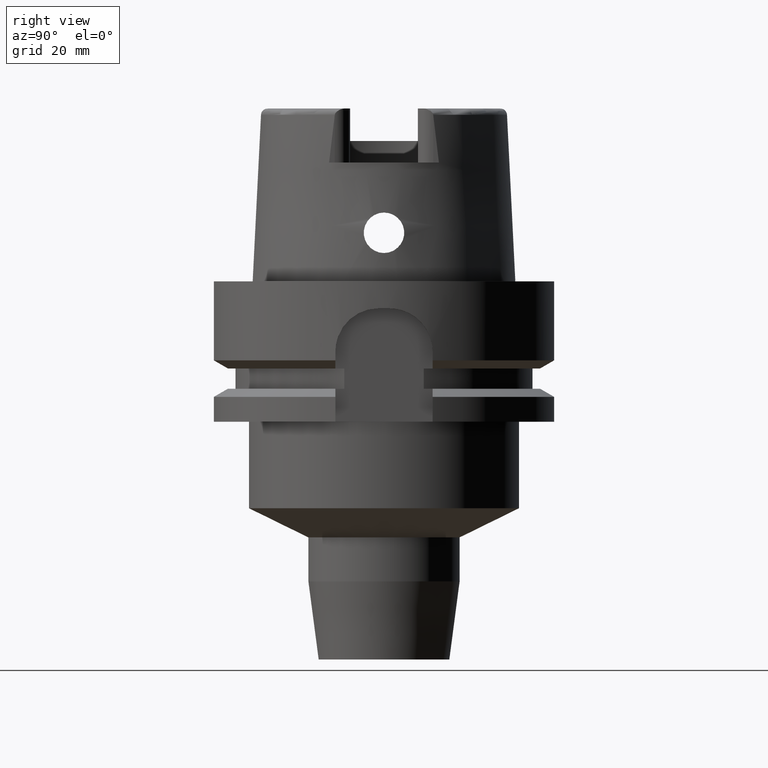
[diagram: clean part render]
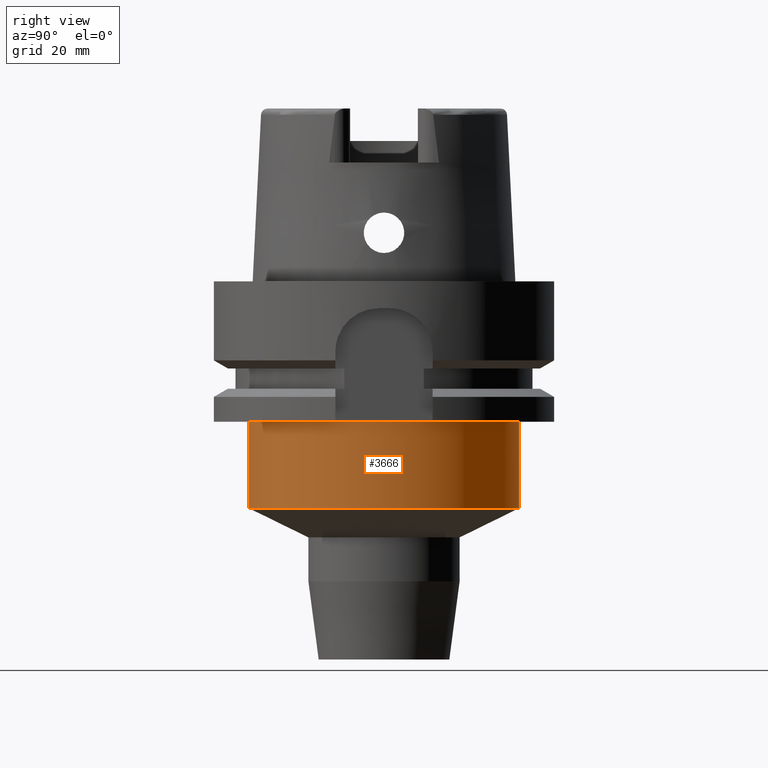
[diagram: same view with one face highlighted and labeled with its STEP entity id]
A machine part, right view. The second image highlights one B-rep face of the part: STEP entity #3666.
In plain terms, the highlighted cylindrical surface (partial cylindrical patch) has radius 25 mm, axis along (0, 0, 1).
Its self-contained STEP definition (entity closure, byte-faithful):
#1072=CARTESIAN_POINT('',(0.E0,0.E0,-2.6E1));
#1073=DIRECTION('',(0.E0,0.E0,-1.E0));
#1074=DIRECTION('',(0.E0,1.E0,0.E0));
#1075=AXIS2_PLACEMENT_3D('',#1072,#1073,#1074);
#1641=DIRECTION('',(0.E0,3.907985046681E-14,-1.E0));
#1642=VECTOR('',#1641,1.6E1);
#1643=CARTESIAN_POINT('',(0.E0,-2.5E1,-2.6E1));
#1644=LINE('',#1643,#1642);
#1648=DIRECTION('',(0.E0,-3.907985046681E-14,-1.E0));
#1649=VECTOR('',#1648,1.6E1);
#1650=CARTESIAN_POINT('',(0.E0,2.5E1,-2.6E1));
#1651=LINE('',#1650,#1649);
#1670=CARTESIAN_POINT('',(0.E0,0.E0,-4.2E1));
#1671=DIRECTION('',(0.E0,0.E0,1.E0));
#1672=DIRECTION('',(0.E0,-1.E0,0.E0));
#1673=AXIS2_PLACEMENT_3D('',#1670,#1671,#1672);
#2428=CARTESIAN_POINT('',(0.E0,2.5E1,-4.2E1));
#2429=VERTEX_POINT('',#2428);
#2430=CARTESIAN_POINT('',(0.E0,-2.5E1,-4.2E1));
#2431=VERTEX_POINT('',#2430);
#2432=CARTESIAN_POINT('',(0.E0,2.5E1,-2.6E1));
#2433=VERTEX_POINT('',#2432);
#2434=CARTESIAN_POINT('',(0.E0,-2.5E1,-2.6E1));
#2435=VERTEX_POINT('',#2434);
#3654=CARTESIAN_POINT('',(0.E0,0.E0,-7.51E1));
#3655=DIRECTION('',(0.E0,0.E0,1.E0));
#3656=DIRECTION('',(0.E0,1.E0,0.E0));
#3657=AXIS2_PLACEMENT_3D('',#3654,#3655,#3656);
#3658=CYLINDRICAL_SURFACE('',#3657,2.5E1);
#3659=ORIENTED_EDGE('',*,*,#3644,.T.);
#3661=ORIENTED_EDGE('',*,*,#3660,.F.);
#3662=ORIENTED_EDGE('',*,*,#3647,.F.);
#3663=ORIENTED_EDGE('',*,*,#3226,.F.);
#3664=EDGE_LOOP('',(#3659,#3661,#3662,#3663));
#3665=FACE_OUTER_BOUND('',#3664,.F.);
#1076=CIRCLE('',#1075,2.5E1);
#1674=CIRCLE('',#1673,2.5E1);
#3226=EDGE_CURVE('',#2433,#2435,#1076,.T.);
#3644=EDGE_CURVE('',#2433,#2429,#1651,.T.);
#3647=EDGE_CURVE('',#2435,#2431,#1644,.T.);
#3660=EDGE_CURVE('',#2431,#2429,#1674,.T.);
#3666=ADVANCED_FACE('',(#3665),#3658,.T.);